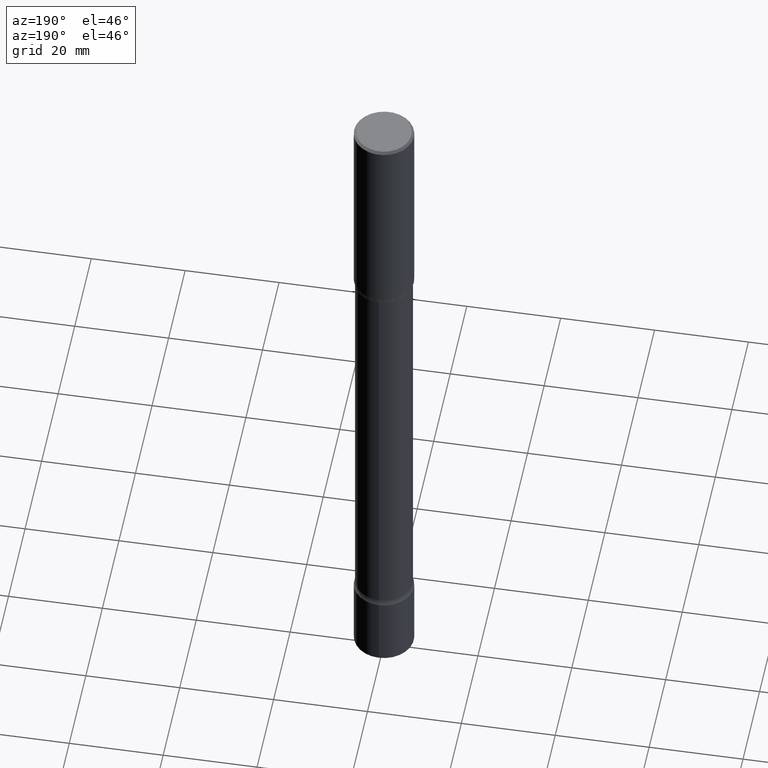
[diagram: clean part render]
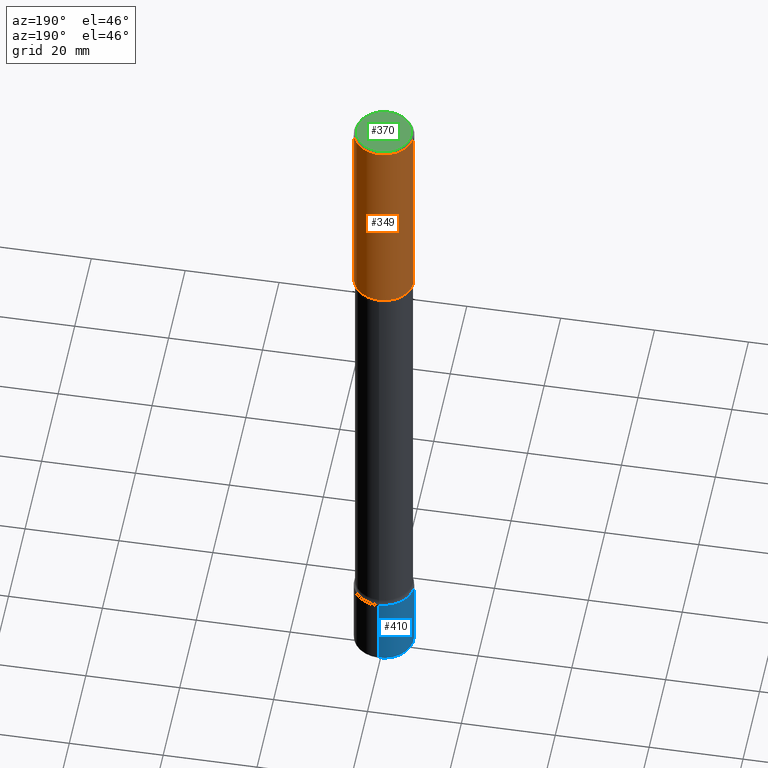
[diagram: same view with three faces highlighted in distinct colors, each labeled with its STEP entity id]
A machine part, auxiliary view with three faces highlighted in distinct colors.
Their STEP definitions:

[orange] entity #349 — the highlighted cylindrical surface (edge-blend (fillet) strip) has radius 6.35 mm, axis along (-0, 0, 1).
#19 = EDGE_CURVE ( 'NONE', #341, #313, #24, .T. ) ;
#21 = CYLINDRICAL_SURFACE ( 'NONE', #167, 0.2499999999999998612 ) ;
#24 = CIRCLE ( 'NONE', #142, 0.2500000000000000000 ) ;
#37 = ORIENTED_EDGE ( 'NONE', *, *, #260, .F. ) ;
#50 = EDGE_CURVE ( 'NONE', #341, #86, #347, .T. ) ;
#66 = EDGE_LOOP ( 'NONE', ( #422, #72, #37, #301 ) ) ;
#72 = ORIENTED_EDGE ( 'NONE', *, *, #449, .T. ) ;
#76 = CARTESIAN_POINT ( 'NONE',  ( 0.2499999999999998612, -1.745740669421565692E-15, 1.219044193948983248E-29 ) ) ;
#86 = VERTEX_POINT ( 'NONE', #237 ) ;
#88 = CARTESIAN_POINT ( 'NONE',  ( -0.2499999999999997224, 1.675911042644701999E-15, -0.02000000000000000042 ) ) ;
#110 = AXIS2_PLACEMENT_3D ( 'NONE', #380, #418, #200 ) ;
#135 = VECTOR ( 'NONE', #388, 39.37007874015748143 ) ;
#142 = AXIS2_PLACEMENT_3D ( 'NONE', #394, #144, #262 ) ;
#144 = DIRECTION ( 'NONE',  ( -2.445468806185136597E-29, 3.491481338843145583E-15, 1.000000000000000000 ) ) ;
#167 = AXIS2_PLACEMENT_3D ( 'NONE', #204, #170, #332 ) ;
#170 = DIRECTION ( 'NONE',  ( -2.445468806185136597E-29, 3.491481338843145583E-15, 1.000000000000000000 ) ) ;
#189 = VERTEX_POINT ( 'NONE', #88 ) ;
#200 = DIRECTION ( 'NONE',  ( 1.000000000000000000, -6.982962677686266711E-15, 0.000000000000000000 ) ) ;
#202 = CARTESIAN_POINT ( 'NONE',  ( 0.2500000000000000000, -7.855833012397075293E-15, -1.750000000000001332 ) ) ;
#204 = CARTESIAN_POINT ( 'NONE',  ( 0.000000000000000000, 0.000000000000000000, 0.000000000000000000 ) ) ;
#237 = CARTESIAN_POINT ( 'NONE',  ( 0.2499999999999997224, -1.784954126219743822E-15, -0.02000000000000000042 ) ) ;
#254 = LINE ( 'NONE', #467, #135 ) ;
#260 = EDGE_CURVE ( 'NONE', #86, #189, #336, .T. ) ;
#262 = DIRECTION ( 'NONE',  ( 1.000000000000000000, -6.982962677686266711E-15, 0.000000000000000000 ) ) ;
#301 = ORIENTED_EDGE ( 'NONE', *, *, #50, .F. ) ;
#313 = VERTEX_POINT ( 'NONE', #450 ) ;
#332 = DIRECTION ( 'NONE',  ( 1.000000000000000000, -6.982962677686266711E-15, 4.876176775795935793E-29 ) ) ;
#336 = CIRCLE ( 'NONE', #110, 0.2499999999999997224 ) ;
#341 = VERTEX_POINT ( 'NONE', #202 ) ;
#347 = LINE ( 'NONE', #76, #469 ) ;
#349 = ADVANCED_FACE ( 'NONE', ( #375 ), #21, .T. ) ;
#375 = FACE_OUTER_BOUND ( 'NONE', #66, .T. ) ;
#380 = CARTESIAN_POINT ( 'NONE',  ( 4.890937612370273159E-31, -6.982962677686291609E-17, -0.02000000000000000042 ) ) ;
#388 = DIRECTION ( 'NONE',  ( -2.445468806185136877E-29, 3.491481338843145188E-15, 1.000000000000000000 ) ) ;
#389 = DIRECTION ( 'NONE',  ( -2.445468806185136877E-29, 3.491481338843145188E-15, 1.000000000000000000 ) ) ;
#394 = CARTESIAN_POINT ( 'NONE',  ( 4.279570410823991847E-29, -6.110092342975509404E-15, -1.750000000000001332 ) ) ;
#418 = DIRECTION ( 'NONE',  ( -2.445468806185136597E-29, 3.491481338843145583E-15, 1.000000000000000000 ) ) ;
#422 = ORIENTED_EDGE ( 'NONE', *, *, #19, .T. ) ;
#449 = EDGE_CURVE ( 'NONE', #313, #189, #254, .T. ) ;
#450 = CARTESIAN_POINT ( 'NONE',  ( -0.2499999999999999722, -1.313604145475934309E-15, -1.750000000000001332 ) ) ;
#467 = CARTESIAN_POINT ( 'NONE',  ( -0.2499999999999998612, 1.776356839400249479E-15, -1.229733772563725745E-29 ) ) ;
#469 = VECTOR ( 'NONE', #389, 39.37007874015748143 ) ;

[blue] entity #410 — the highlighted cylindrical surface (edge-blend (fillet) strip) has radius 6.35 mm, axis along (-0, 0, 1).
#9 = CARTESIAN_POINT ( 'NONE',  ( -1.745740669421418766E-15, -0.2500000000000208167, -5.999999999999999112 ) ) ;
#25 = CARTESIAN_POINT ( 'NONE',  ( -1.745740669421565494E-15, -0.2499999999999998612, 8.729905339774488277E-16 ) ) ;
#45 = CARTESIAN_POINT ( 'NONE',  ( 1.467079840432764021E-28, -2.095177281545878449E-14, -6.000000000000000888 ) ) ;
#65 = CARTESIAN_POINT ( 'NONE',  ( -1.745740669421433952E-15, -0.2500000000000186517, -5.375000000000000888 ) ) ;
#67 = VECTOR ( 'NONE', #286, 39.37007874015748143 ) ;
#78 = VERTEX_POINT ( 'NONE', #9 ) ;
#79 = VERTEX_POINT ( 'NONE', #403 ) ;
#103 = EDGE_CURVE ( 'NONE', #357, #78, #318, .T. ) ;
#113 = ORIENTED_EDGE ( 'NONE', *, *, #300, .T. ) ;
#116 = LINE ( 'NONE', #315, #459 ) ;
#138 = EDGE_CURVE ( 'NONE', #357, #79, #116, .T. ) ;
#164 = DIRECTION ( 'NONE',  ( -2.445133067387939381E-29, 3.491962135909797283E-15, 1.000000000000000000 ) ) ;
#177 = ORIENTED_EDGE ( 'NONE', *, *, #312, .F. ) ;
#181 = AXIS2_PLACEMENT_3D ( 'NONE', #426, #431, #340 ) ;
#207 = ORIENTED_EDGE ( 'NONE', *, *, #103, .T. ) ;
#221 = FACE_OUTER_BOUND ( 'NONE', #321, .T. ) ;
#245 = DIRECTION ( 'NONE',  ( -2.445133067387939662E-29, 3.491962135909797283E-15, 1.000000000000000000 ) ) ;
#261 = CYLINDRICAL_SURFACE ( 'NONE', #181, 0.2499999999999998612 ) ;
#284 = DIRECTION ( 'NONE',  ( -6.982962677686265922E-15, -1.000000000000000000, 4.370956789862823516E-15 ) ) ;
#286 = DIRECTION ( 'NONE',  ( -2.445133067387939381E-29, 3.491962135909797283E-15, 1.000000000000000000 ) ) ;
#300 = EDGE_CURVE ( 'NONE', #78, #310, #411, .T. ) ;
#310 = VERTEX_POINT ( 'NONE', #65 ) ;
#312 = EDGE_CURVE ( 'NONE', #79, #310, #326, .T. ) ;
#315 = CARTESIAN_POINT ( 'NONE',  ( 1.776356839400249281E-15, 0.2499999999999998612, -8.729905339774488277E-16 ) ) ;
#318 = CIRCLE ( 'NONE', #365, 0.2499999999999998612 ) ;
#321 = EDGE_LOOP ( 'NONE', ( #390, #207, #113, #177 ) ) ;
#323 = DIRECTION ( 'NONE',  ( -6.982962677686265922E-15, -1.000000000000000000, 4.370956789862823516E-15 ) ) ;
#326 = CIRCLE ( 'NONE', #353, 0.2499999999999998612 ) ;
#329 = CARTESIAN_POINT ( 'NONE',  ( 1.314259023721017932E-28, -1.876929648051516616E-14, -5.375000000000001776 ) ) ;
#340 = DIRECTION ( 'NONE',  ( -6.982962677686265922E-15, -1.000000000000000000, 3.491962135909797283E-15 ) ) ;
#353 = AXIS2_PLACEMENT_3D ( 'NONE', #329, #245, #284 ) ;
#357 = VERTEX_POINT ( 'NONE', #491 ) ;
#362 = DIRECTION ( 'NONE',  ( -2.445133067387939662E-29, 3.491962135909797283E-15, 1.000000000000000000 ) ) ;
#365 = AXIS2_PLACEMENT_3D ( 'NONE', #45, #362, #323 ) ;
#390 = ORIENTED_EDGE ( 'NONE', *, *, #138, .F. ) ;
#403 = CARTESIAN_POINT ( 'NONE',  ( 1.776356839400396404E-15, 0.2499999999999811262, -5.375000000000002665 ) ) ;
#410 = ADVANCED_FACE ( 'NONE', ( #221 ), #261, .T. ) ;
#411 = LINE ( 'NONE', #25, #67 ) ;
#426 = CARTESIAN_POINT ( 'NONE',  ( 0.000000000000000000, 0.000000000000000000, 0.000000000000000000 ) ) ;
#431 = DIRECTION ( 'NONE',  ( -2.445133067387939662E-29, 3.491962135909797283E-15, 1.000000000000000000 ) ) ;
#459 = VECTOR ( 'NONE', #164, 39.37007874015748143 ) ;
#491 = CARTESIAN_POINT ( 'NONE',  ( 1.776356839400388121E-15, 0.2499999999999789058, -6.000000000000001776 ) ) ;

[green] entity #370 — the highlighted planar face has unit normal (0, -0, -1).
#1 = CARTESIAN_POINT ( 'NONE',  ( -4.175405657340879278E-46, 5.961372681521788801E-32, 1.707404996040164512E-17 ) ) ;
#18 = DIRECTION ( 'NONE',  ( -2.445468806185136597E-29, 3.491481338843145583E-15, 1.000000000000000000 ) ) ;
#26 = ORIENTED_EDGE ( 'NONE', *, *, #34, .T. ) ;
#34 = EDGE_CURVE ( 'NONE', #71, #145, #75, .T. ) ;
#36 = EDGE_LOOP ( 'NONE', ( #26, #102 ) ) ;
#42 = AXIS2_PLACEMENT_3D ( 'NONE', #339, #18, #496 ) ;
#71 = VERTEX_POINT ( 'NONE', #446 ) ;
#75 = CIRCLE ( 'NONE', #194, 0.2299999999999997324 ) ;
#97 = FACE_OUTER_BOUND ( 'NONE', #36, .T. ) ;
#102 = ORIENTED_EDGE ( 'NONE', *, *, #316, .T. ) ;
#145 = VERTEX_POINT ( 'NONE', #401 ) ;
#185 = PLANE ( 'NONE',  #274 ) ;
#194 = AXIS2_PLACEMENT_3D ( 'NONE', #1, #386, #425 ) ;
#225 = DIRECTION ( 'NONE',  ( 2.438088387897960049E-29, -3.491481338843145188E-15, -1.000000000000000000 ) ) ;
#274 = AXIS2_PLACEMENT_3D ( 'NONE', #304, #225, #385 ) ;
#304 = CARTESIAN_POINT ( 'NONE',  ( 1.606081415867839292E-15, 0.2299999999999997324, -7.945036829537217511E-16 ) ) ;
#316 = EDGE_CURVE ( 'NONE', #145, #71, #405, .T. ) ;
#339 = CARTESIAN_POINT ( 'NONE',  ( -4.175405657340879278E-46, 5.961372681521788801E-32, 1.707404996040164512E-17 ) ) ;
#370 = ADVANCED_FACE ( 'NONE', ( #97 ), #185, .F. ) ;
#385 = DIRECTION ( 'NONE',  ( -1.000000000000000000, 6.982962677686265922E-15, -4.876176775795935793E-29 ) ) ;
#386 = DIRECTION ( 'NONE',  ( -2.445468806185136597E-29, 3.491481338843145583E-15, 1.000000000000000000 ) ) ;
#401 = CARTESIAN_POINT ( 'NONE',  ( 0.2299999999999997324, -1.681434332853597236E-15, 1.707404996041313907E-17 ) ) ;
#405 = CIRCLE ( 'NONE', #42, 0.2299999999999997324 ) ;
#425 = DIRECTION ( 'NONE',  ( 1.000000000000000000, -6.982962677686266711E-15, 4.875813741439105379E-29 ) ) ;
#446 = CARTESIAN_POINT ( 'NONE',  ( -0.2299999999999997324, 1.640996229256270744E-15, 1.707404996039028983E-17 ) ) ;
#496 = DIRECTION ( 'NONE',  ( 1.000000000000000000, -6.982962677686266711E-15, 4.875813741439105379E-29 ) ) ;